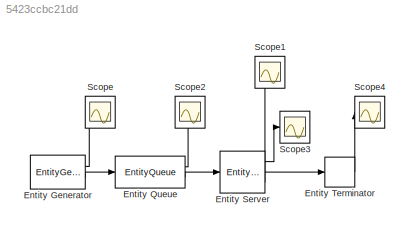
MODEL slx_5423ccbc21dd
KIND model
CONFIG AbsTol = auto
CONFIG FixedStep = auto
CONFIG MaxStep = auto
CONFIG MinStep = auto
CONFIG RelTol = 1e-3
CONFIG SampleTimeConstraint = Unconstrained
CONFIG Solver = VariableStepDiscrete
CONFIG SolverMode = Auto
CONFIG SolverName = VariableStepDiscrete
CONFIG StartTime = 0.0
CONFIG StopTime = 480
BLOCK [EntityGenerator] Entity Generator
  EntityType = Structured
  EntityTypeName = Entity
  IntergenerationTimeAction = dt = 12 + 12 * rand;
  NumberEntitiesDeparted = on
  OutputPortMap = o0,o3
  OutputPortMessageModes = n,m
  Ports = [0, 2]
  TimeSource = MATLAB action
BLOCK [EntityQueue] Entity Queue
  AverageWait = on
  InputPortMap = u0
  InputPortMessageModes = m
  OutputPortMap = o2,o5
  OutputPortMessageModes = n,m
  Ports = [1, 2]
BLOCK [EntityServer] Entity Server
  AverageWait = on
  Capacity = 2
  InputPortMap = u2
  InputPortMessageModes = m
  OutputPortMap = o4,o5,o9
  OutputPortMessageModes = n,n,m
  Ports = [1, 3]
  ServiceTimeAction = dt = 28 + 8 * rand;
  ServiceTimeSource = MATLAB action
  Utilization = on
BLOCK [EntityTerminator] Entity Terminator
  InputPortMap = u0
  InputPortMessageModes = m
  NumberEntitiesArrived = on
  OutputPortMap = o0
  Ports = [1, 1]
BLOCK [Scope] Scope
  Ports = [1]
  ScopeSpecificationString = Simulink.scopes.TimeScopeBlockCfg('CurrentConfiguration', extmgr.ConfigurationSet(extmgr.Configuration('Core','General UI',true),extmgr.Configuration('Core','Source UI',true),extmgr.Configuration('Sources','WiredSimulink',true,'DataLoggingVariableName','ScopeData1'),extmgr.Configuration('Visuals','Time Domain',true,'SerializedDisplays',{struct('MinYLimReal','-10','MaxYLimReal','10','YLabelReal',''...<+1420ch>
BLOCK [Scope] Scope1
  Ports = [1]
  ScopeSpecificationString = Simulink.scopes.TimeScopeBlockCfg('CurrentConfiguration', extmgr.ConfigurationSet(extmgr.Configuration('Core','General UI',true),extmgr.Configuration('Core','Source UI',true),extmgr.Configuration('Sources','WiredSimulink',true),extmgr.Configuration('Visuals','Time Domain',true,'SerializedDisplays',{struct('MinYLimReal','-10','MaxYLimReal','10','YLabelReal','','MinYLimMag','0','MaxYLimMag','10','Le...<+1361ch>
BLOCK [Scope] Scope2
  Ports = [1]
  ScopeSpecificationString = Simulink.scopes.TimeScopeBlockCfg('CurrentConfiguration', extmgr.ConfigurationSet(extmgr.Configuration('Core','General UI',true),extmgr.Configuration('Core','Source UI',true),extmgr.Configuration('Sources','WiredSimulink',true,'DataLoggingVariableName','ScopeData2'),extmgr.Configuration('Visuals','Time Domain',true,'SerializedDisplays',{struct('MinYLimReal','-10','MaxYLimReal','10','YLabelReal',''...<+1410ch>
BLOCK [Scope] Scope3
  Ports = [1]
  ScopeSpecificationString = Simulink.scopes.TimeScopeBlockCfg('CurrentConfiguration', extmgr.ConfigurationSet(extmgr.Configuration('Core','General UI',true),extmgr.Configuration('Core','Source UI',true),extmgr.Configuration('Sources','WiredSimulink',true,'DataLoggingVariableName','ScopeData3'),extmgr.Configuration('Visuals','Time Domain',true,'SerializedDisplays',{struct('MinYLimReal','-10','MaxYLimReal','10','YLabelReal',''...<+1392ch>
BLOCK [Scope] Scope4
  Ports = [1]
  ScopeSpecificationString = Simulink.scopes.TimeScopeBlockCfg('CurrentConfiguration', extmgr.ConfigurationSet(extmgr.Configuration('Core','General UI',true),extmgr.Configuration('Core','Source UI',true),extmgr.Configuration('Sources','WiredSimulink',true,'DataLoggingVariableName','ScopeData4'),extmgr.Configuration('Visuals','Time Domain',true,'SerializedDisplays',{struct('MinYLimReal','-10','MaxYLimReal','10','YLabelReal',''...<+1398ch>
LINE Entity Generator:1 -> Scope:1
LINE Entity Generator:2 -> Entity Queue:1
LINE Entity Queue:1 -> Scope2:1
LINE Entity Queue:2 -> Entity Server:1
LINE Entity Server:1 -> Scope3:1
LINE Entity Server:2 -> Scope1:1
LINE Entity Server:3 -> Entity Terminator:1
LINE Entity Terminator:1 -> Scope4:1
